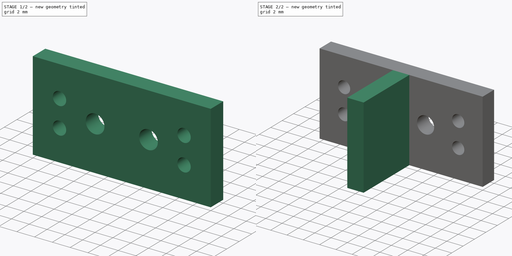
[diagram: build sequence overview — one tinted view per stage of 2, left to right]
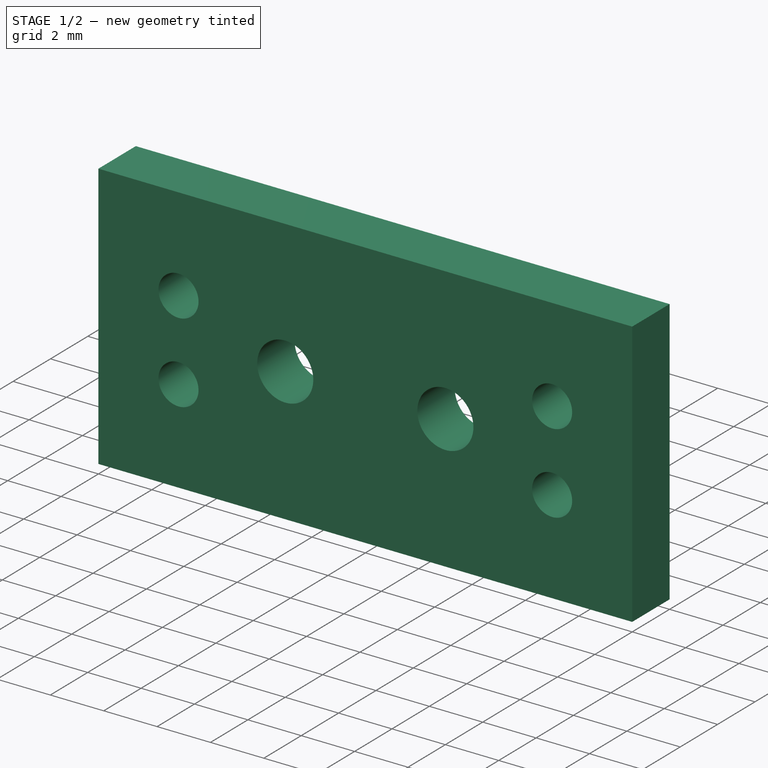
[diagram: stage 1 of 2 — iso view after this stage's code; geometry added in this stage tinted green]
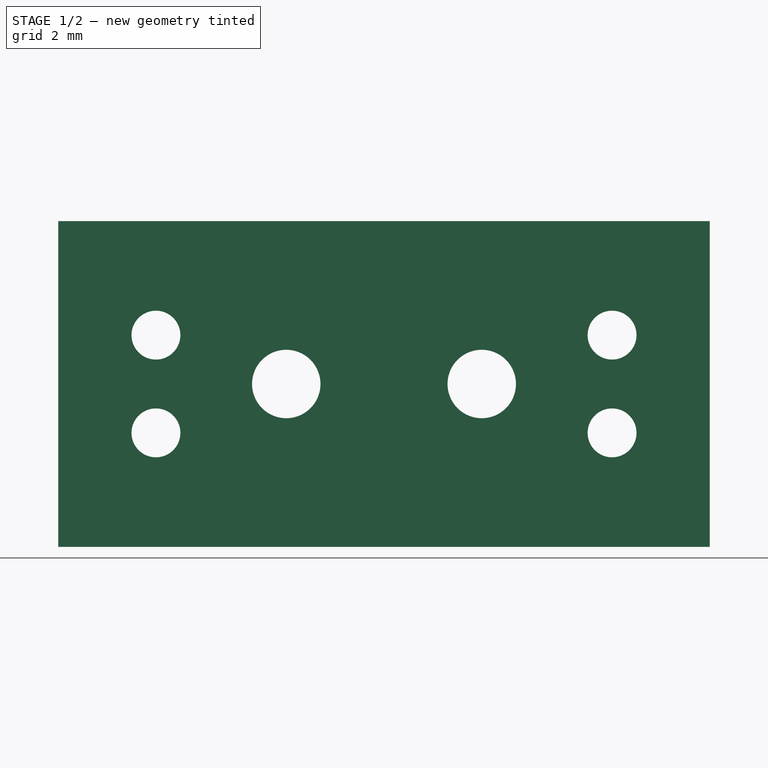
[diagram: stage 1 of 2 — front view after this stage's code; geometry added in this stage tinted green]
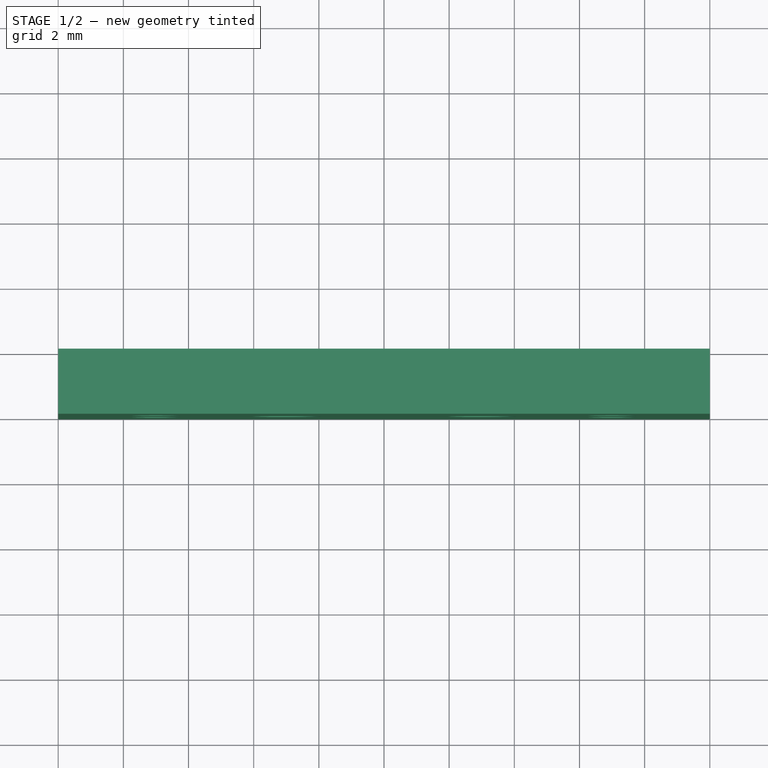
[diagram: stage 1 of 2 — top view after this stage's code; geometry added in this stage tinted green]
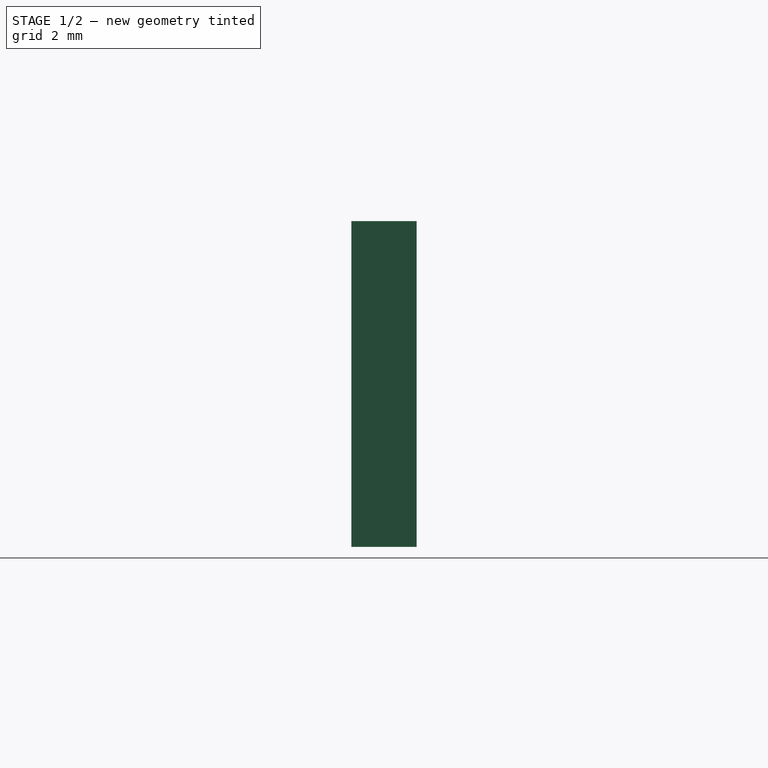
[diagram: stage 1 of 2 — right view after this stage's code; geometry added in this stage tinted green]
FCSTD DOCUMENT  (FreeCAD 1.0RUnknown)
Label: sensor-holder
License: All rights reserved
LicenseURL: https://en.wikipedia.org/wiki/All_rights_reserved
objects: Sketcher::SketchObject×2, PartDesign::Pad×2, PartDesign::Body×1
note: 11 computed .brp shape members not serialized (recipe doc carries the construction recipe); baked Part::Feature solids carry a one-line shape summary decoded from their .brp

FEATURE [Sketcher::SketchObject] Sketch
  ArcFitTolerance = 1e-06
  AttachmentSupport = -> [XZ_Plane]
  FullyConstrained = true
  MakeInternals = false
  MapMode = 5
  Placement = pos=(0,0,0) rot=(1,0,0;1.5708rad)
  expr: Constraints[13] = 10 mm / 2 mm + 3 mm / 2 mm
  sketch-geometry (14):
    g0: LineSegment StartX=-1e-16 StartY=0 StartZ=0 EndX=20 EndY=0 EndZ=0
    g1: LineSegment StartX=20 StartY=0 StartZ=0 EndX=20 EndY=10 EndZ=0
    g2: LineSegment StartX=20 StartY=10 StartZ=0 EndX=0 EndY=10 EndZ=0
    g3: LineSegment StartX=-1e-16 StartY=10 StartZ=0 EndX=-1e-16 EndY=0 EndZ=0
    g4: Circle CenterX=3 CenterY=3.5 CenterZ=0 NormalX=0 NormalY=0 NormalZ=1 AngleXU=0 Radius=0.75
    g5: Circle CenterX=3 CenterY=6.5 CenterZ=0 NormalX=0 NormalY=0 NormalZ=1 AngleXU=0 Radius=0.75
    g6: Circle CenterX=17 CenterY=3.5 CenterZ=0 NormalX=0 NormalY=0 NormalZ=1 AngleXU=0 Radius=0.75
    g7: Circle CenterX=17 CenterY=6.5 CenterZ=0 NormalX=0 NormalY=0 NormalZ=1 AngleXU=0 Radius=0.75
    g8: LineSegment [constr] StartX=9 StartY=0 StartZ=0 EndX=11 EndY=0 EndZ=0
    g9: LineSegment [constr] StartX=11 StartY=0 StartZ=0 EndX=11 EndY=10 EndZ=0
    g10: LineSegment [constr] StartX=11 StartY=10 StartZ=0 EndX=9 EndY=10 EndZ=0
    g11: LineSegment [constr] StartX=9 StartY=10 StartZ=0 EndX=9 EndY=0 EndZ=0
    g12: Circle CenterX=7 CenterY=5 CenterZ=0 NormalX=0 NormalY=0 NormalZ=1 AngleXU=0 Radius=1.05
    g13: Circle CenterX=13 CenterY=5 CenterZ=0 NormalX=0 NormalY=0 NormalZ=1 AngleXU=0 Radius=1.05
  constraints (41):
    c: Coincident(g0,g1)
    c: Coincident(g1,g2)
    c: Coincident(g2,g3)
    c: Coincident(g3,g0)
    c: Horizontal(g0)
    c: Horizontal(g2)
    c: Vertical(g1)
    c: Vertical(g3)
    c: Distance(g1,g3) = 20
    c: Distance(g0,g2) = 10
    c: Coincident(g0,g-1)
    c: Diameter(g5) = 1.5
    c: Equal(g5,g4)
    c: DistanceY(g0,g5) = 6.5
    c: DistanceY(g4,g5) = 3
    c: Diameter(g7) = 1.5
    c: Equal(g7,g6)
    c: DistanceY(g6,g7) = 3
    c: Vertical(g5,g4)
    c: Vertical(g7,g6)
    c: Horizontal(g4,g6)
    c: DistanceX(g0,g4) = 3
    c: DistanceX(g6,g0) = 3
    c: Coincident(g8,g9)
    c: Coincident(g9,g10)
    c: Coincident(g10,g11)
    c: Coincident(g11,g8)
    c: Horizontal(g8)
    c: Horizontal(g10)
    c: Vertical(g9)
    c: Vertical(g11)
    c: PointOnObject(g8,g0)
    c: DistanceX(g0,g8) = 9
    c: DistanceX(g8,g8) = 2
    c: PointOnObject(g10,g2)
    c: Diameter(g12) = 2.1
    c: DistanceX(g12,g8) = 2
    c: Diameter(g13) = 2.1
    c: DistanceX(g8,g13) = 2
    c: DistanceY(g8,g12) = 5
    c: DistanceY(g8,g13) = 5
FEATURE [PartDesign::Pad] Pad
  Direction = (0,-1,2e-16)
  Length = 2
  Length2 = 10
  Placement = pos=(0,0,0) rot=(1,0,0;1.5708rad)
  Profile = -> Sketch
  ReferenceAxis = -> Sketch [N_Axis]
  Refine = true
  Suppressed = false
  Type = 0
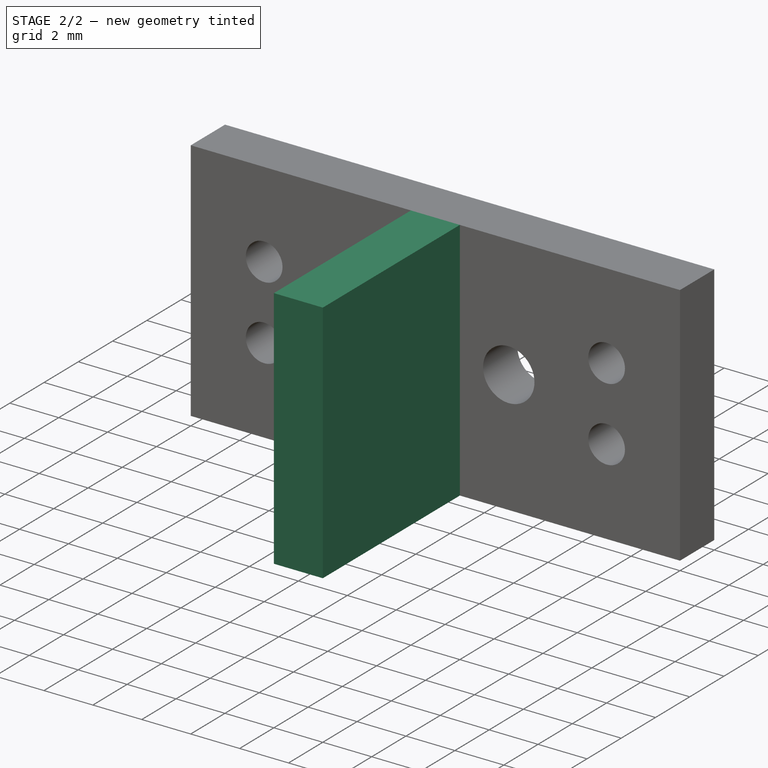
[diagram: stage 2 of 2 — iso view after this stage's code; geometry added in this stage tinted green]
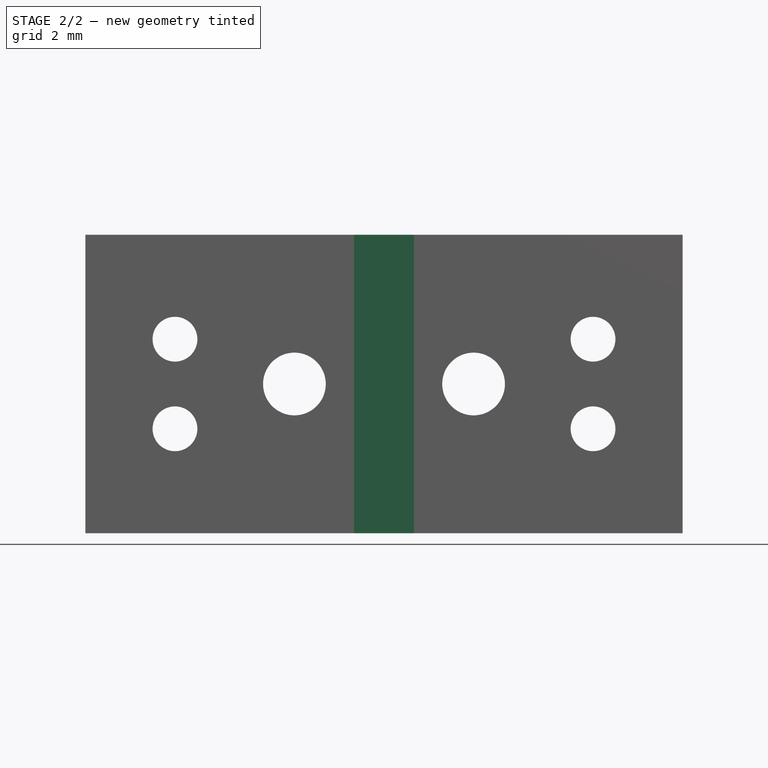
[diagram: stage 2 of 2 — front view after this stage's code; geometry added in this stage tinted green]
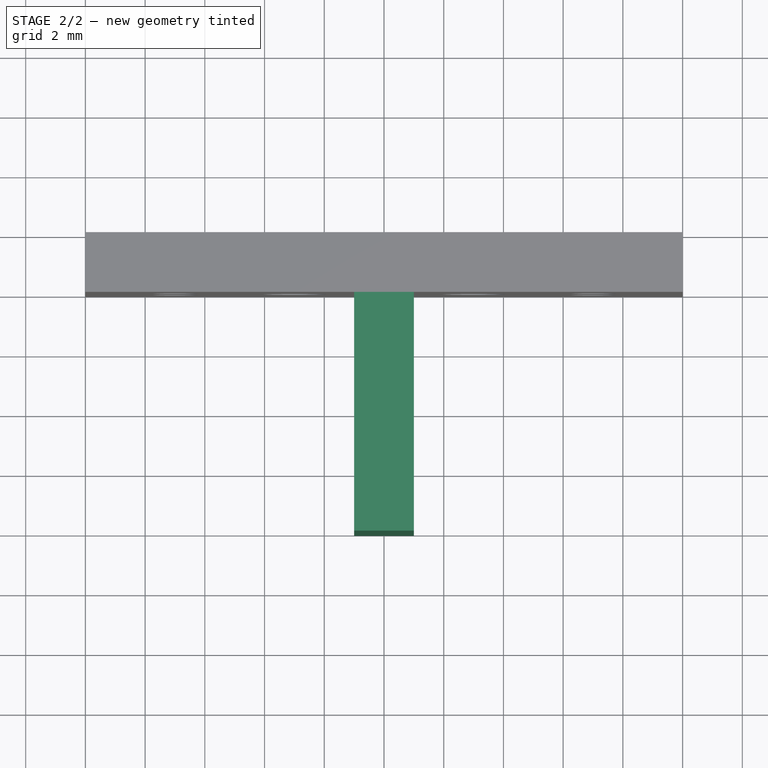
[diagram: stage 2 of 2 — top view after this stage's code; geometry added in this stage tinted green]
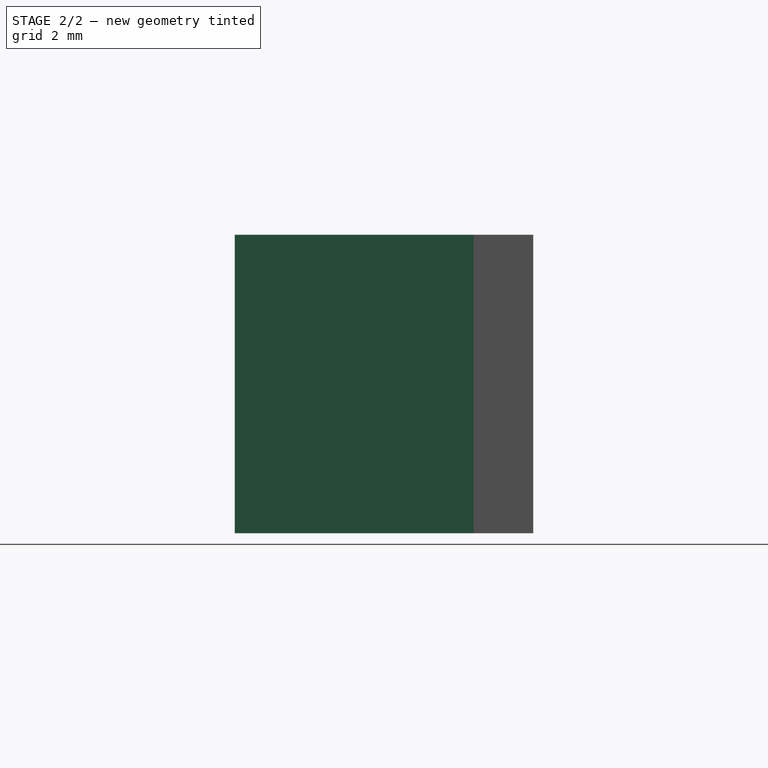
[diagram: stage 2 of 2 — right view after this stage's code; geometry added in this stage tinted green]
FEATURE [Sketcher::SketchObject] Sketch001
  ArcFitTolerance = 1e-06
  AttachmentSupport = -> [Pad]
  FullyConstrained = true
  MakeInternals = false
  MapMode = 5
  Placement = pos=(0,-2,4e-16) rot=(1,0,0;1.5708rad)
  expr: Constraints[11] = 20 / 2 - 2 / 2
  sketch-geometry (4):
    g0: LineSegment StartX=9 StartY=0 StartZ=0 EndX=11 EndY=0 EndZ=0
    g1: LineSegment StartX=11 StartY=0 StartZ=0 EndX=11 EndY=10 EndZ=0
    g2: LineSegment StartX=11 StartY=10 StartZ=0 EndX=9 EndY=10 EndZ=0
    g3: LineSegment StartX=9 StartY=10 StartZ=0 EndX=9 EndY=0 EndZ=0
  constraints (12):
    c: Coincident(g0,g1)
    c: Coincident(g1,g2)
    c: Coincident(g2,g3)
    c: Coincident(g3,g0)
    c: Horizontal(g0)
    c: Horizontal(g2)
    c: Vertical(g1)
    c: Vertical(g3)
    c: Distance(g1,g3) = 2
    c: Distance(g0,g2) = 10
    c: PointOnObject(g0,g-1)
    c: DistanceX(g-1,g0) = 9
FEATURE [PartDesign::Pad] Pad001
  BaseFeature = -> Pad
  Direction = (0,-1,2e-16)
  Length = 8
  Length2 = 10
  Placement = pos=(0,0,0) rot=(1,0,0;1.5708rad)
  Profile = -> Sketch001
  ReferenceAxis = -> Sketch001 [N_Axis]
  Refine = true
  Suppressed = false
  Type = 0
FEATURE [PartDesign::Body] Body  label="sensor-holder"
  AllowCompound = false
  Group = -> [Sketch,Pad,Sketch001,Pad001]
  Origin = -> Origin
  Tip = -> Pad001
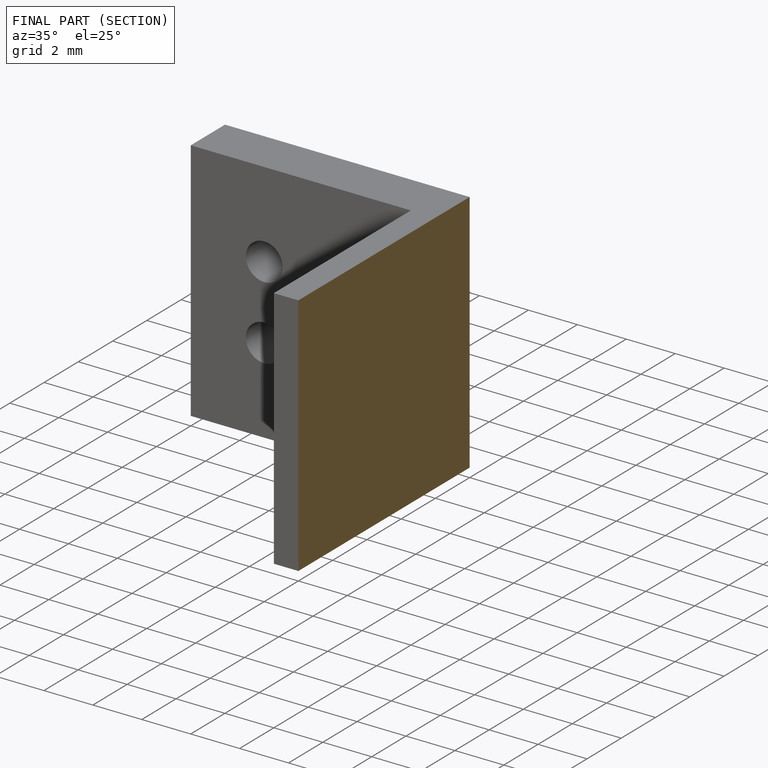
[diagram: finished part — half-section view (interior)]
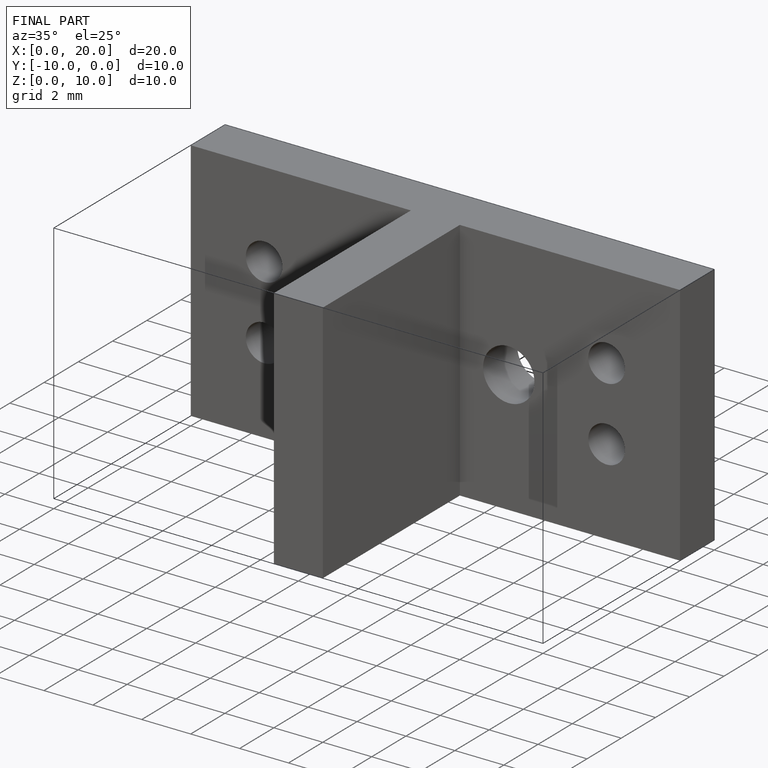
[diagram: finished part — iso view with bounding-box wireframe]
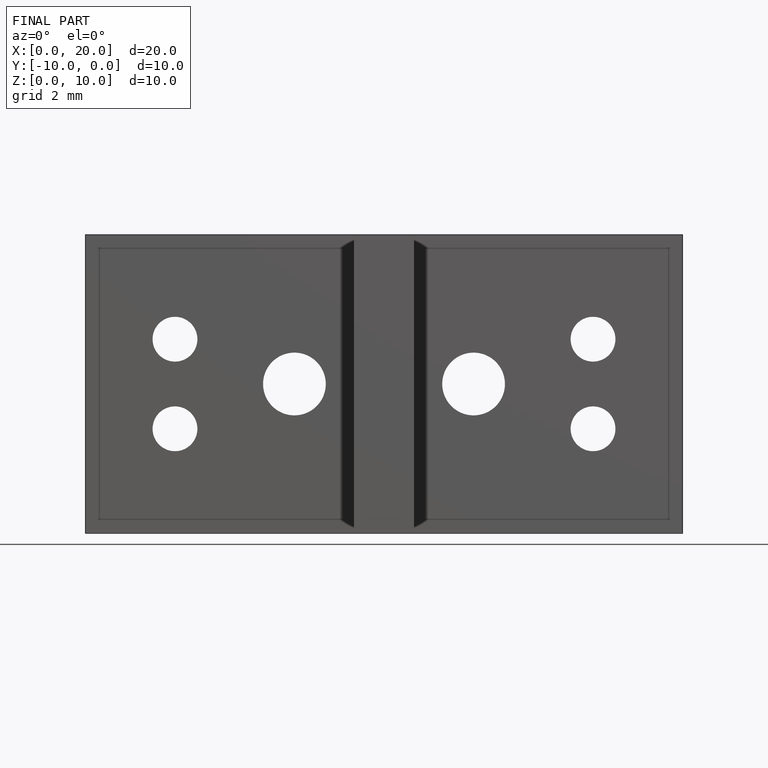
[diagram: finished part — front view with bounding-box wireframe]
